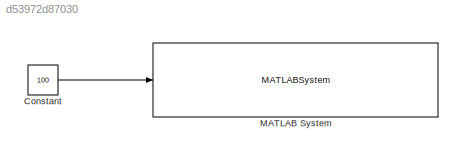
MODEL slx_d53972d87030
KIND model
CONFIG AbsTol = auto
CONFIG EnableMultiTasking = off
CONFIG FixedStep = 0.005
CONFIG MaxStep = auto
CONFIG MinStep = auto
CONFIG RelTol = 1e-3
CONFIG SampleTimeConstraint = Unconstrained
CONFIG SolverName = FixedStepDiscrete
CONFIG StartTime = 0.0
CONFIG StopTime = inf
BLOCK [Constant] Constant
  Value = 100
BLOCK [MATLABSystem] MATLAB System
  MaskDisplay = color('white');plot([100,100,100,100]*1,[100,100,100,100]*1);plot([100,100,100,100]*0,[100,100,100,100]*0);color('blue');text(38, 92, 'IO Device Builder','horizontalAlignment', 'right');\ncolor('black');text(52,50,' LEDC_INTERFACE','horizontalAlignment','center');\nport_label('input',1,'Duty_Cycle_Percent');
  MaskType = LEDC_INTERFACE
  PWM_CHANNEL = int16( 0 )
  PWM_Clock_Speed = int64( 80000000 )
  PWM_FREQUENCY = int16( 19555 )
  PWM_PIN = int16( 14 )
  PWM_RESOLUTION = int16( 12 )
  SampleTime = -1
  System = LEDC_INTERFACE
LINE Constant:1 -> MATLAB System:1
